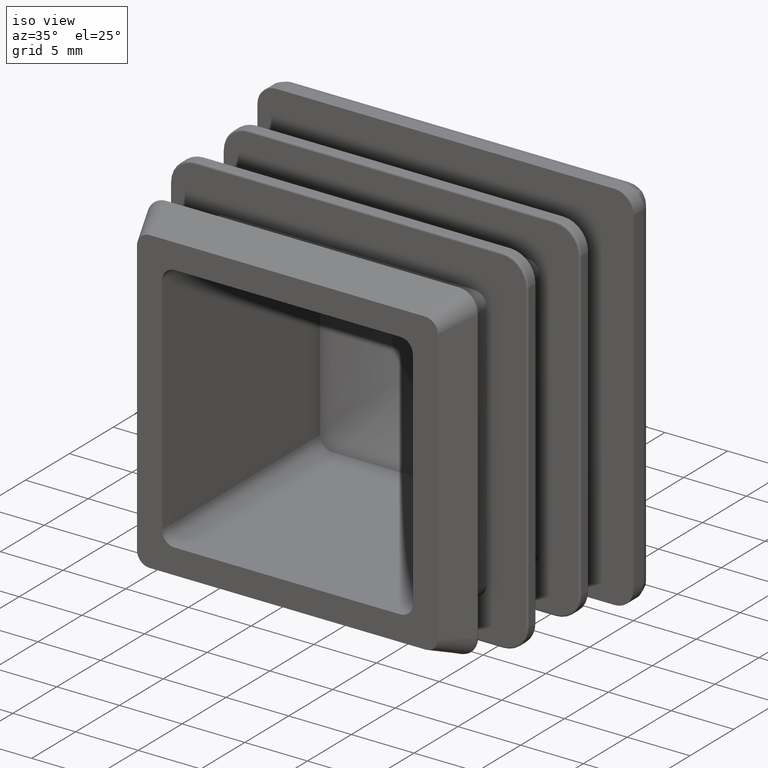
[diagram: clean part render]
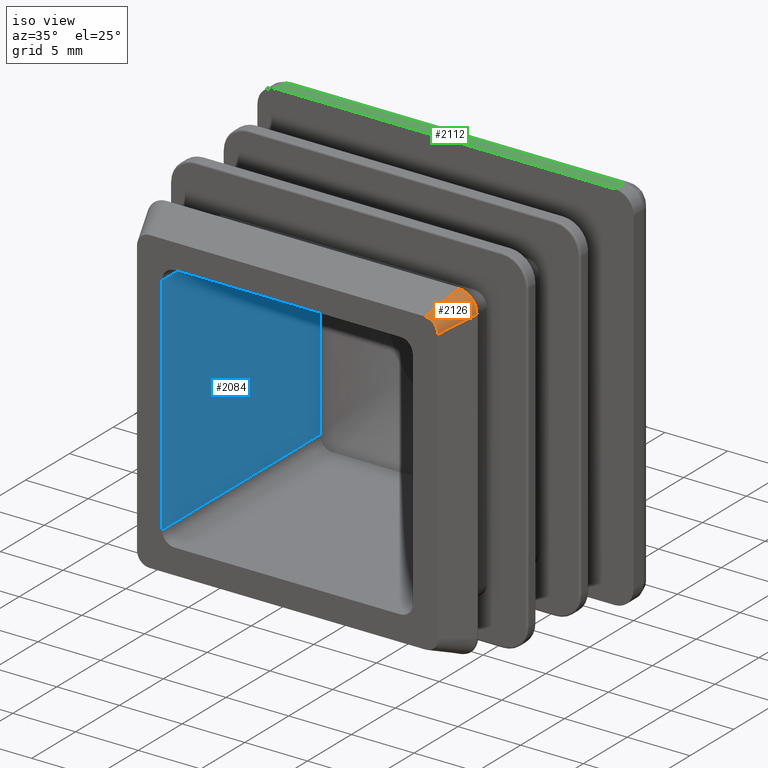
[diagram: same view with three faces highlighted in distinct colors, each labeled with its STEP entity id]
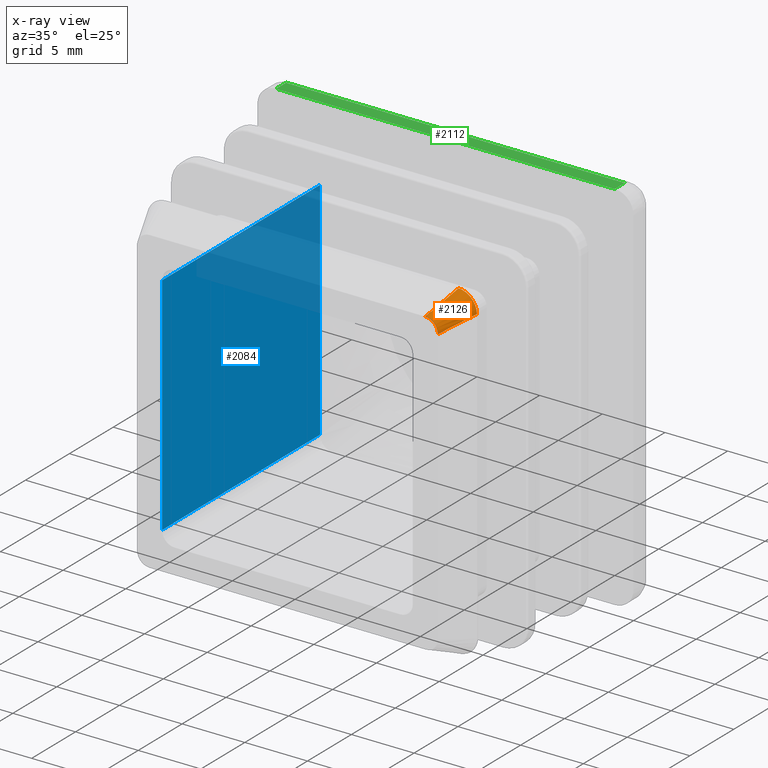
[diagram: x-ray of the same camera — body ghosted, the three highlighted faces saturated]
A machine part, iso view with three faces highlighted in distinct colors.
The next image is the same camera in x-ray (body ghosted, the three faces saturated) — at least one of them is partly hidden behind the body in this view.
Their STEP definitions:

[orange] entity #2126 — the highlighted face is a freeform B-spline surface patch.
#32=(
BOUNDED_SURFACE()
B_SPLINE_SURFACE(1,2,((#4036,#4037,#4038),(#4039,#4040,#4041)),
 .UNSPECIFIED.,.F.,.F.,.F.)
B_SPLINE_SURFACE_WITH_KNOTS((2,2),(3,3),(-0.165194065145161,1.9891013757622),
(-2.3205807165196,-0.821011937070298),.UNSPECIFIED.)
GEOMETRIC_REPRESENTATION_ITEM()
RATIONAL_B_SPLINE_SURFACE(((1.,0.73183582018612,1.),(1.,0.73183582018612,
1.)))
REPRESENTATION_ITEM('')
SURFACE()
);
#46=B_SPLINE_CURVE_WITH_KNOTS('',3,(#3840,#3841,#3842,#3843,#3844),
 .UNSPECIFIED.,.F.,.F.,(4,1,4),(-0.208371913832092,-0.0893022487851824,
0.),.UNSPECIFIED.);
#186=LINE('',#4034,#350);
#188=LINE('',#4043,#352);
#350=VECTOR('',#2710,3.10450259953709);
#352=VECTOR('',#2712,3.10450259953709);
#522=FACE_OUTER_BOUND('',#659,.T.);
#659=EDGE_LOOP('',(#1622,#1623,#1624,#1625));
#790=CIRCLE('',#2300,0.999999999999999);
#943=VERTEX_POINT('',#3837);
#944=VERTEX_POINT('',#3839);
#961=VERTEX_POINT('',#4033);
#962=VERTEX_POINT('',#4042);
#1175=EDGE_CURVE('',#943,#944,#46,.T.);
#1203=EDGE_CURVE('',#944,#961,#186,.T.);
#1205=EDGE_CURVE('',#943,#962,#188,.T.);
#1206=EDGE_CURVE('',#962,#961,#790,.T.);
#1622=ORIENTED_EDGE('',*,*,#1175,.F.);
#1623=ORIENTED_EDGE('',*,*,#1205,.T.);
#1624=ORIENTED_EDGE('',*,*,#1206,.T.);
#1625=ORIENTED_EDGE('',*,*,#1203,.F.);
#2126=ADVANCED_FACE('',(#522),#32,.F.);
#2300=AXIS2_PLACEMENT_3D('',#4044,#2713,#2714);
#2710=DIRECTION('',(-0.374765844497932,-0.899438026795033,-0.224859506698761));
#2712=DIRECTION('',(-0.224859506698759,-0.899438026795033,-0.374765844497933));
#2713=DIRECTION('center_axis',(0.,1.,0.));
#2714=DIRECTION('ref_axis',(1.,0.,-2.22044604925032E-15));
#3837=CARTESIAN_POINT('',(11.6980769230769,-15.2076923076923,13.1634615384615));
#3839=CARTESIAN_POINT('',(13.1634615384615,-15.2076923076923,11.6980769230769));
#3840=CARTESIAN_POINT('Ctrl Pts',(11.6980769230769,-15.2076923076923,13.1634615384615));
#3841=CARTESIAN_POINT('Ctrl Pts',(12.1366227737999,-15.2165638510083,13.1597650620799));
#3842=CARTESIAN_POINT('Ctrl Pts',(12.8878138604166,-15.2229916394853,12.7888403204552));
#3843=CARTESIAN_POINT('Ctrl Pts',(13.1606891811753,-15.2143459651793,12.0269863111191));
#3844=CARTESIAN_POINT('Ctrl Pts',(13.1634615384615,-15.2076923076923,11.6980769230769));
#4033=CARTESIAN_POINT('',(12.,-18.,11.));
#4034=CARTESIAN_POINT('',(13.25,-15.,11.75));
#4036=CARTESIAN_POINT('Ctrl Pts',(13.2117748773477,-15.0917402943656,11.7270649264086));
#4037=CARTESIAN_POINT('Ctrl Pts',(13.0863524490272,-15.3927541223345,13.0863524490274));
#4038=CARTESIAN_POINT('Ctrl Pts',(11.7270649264086,-15.0917402943656,13.2117748773477));
#4039=CARTESIAN_POINT('Ctrl Pts',(12.,-18.,11.));
#4040=CARTESIAN_POINT('Ctrl Pts',(11.9155239525127,-18.2027425139695,11.9155239525128));
#4041=CARTESIAN_POINT('Ctrl Pts',(11.,-18.,12.));
#4042=CARTESIAN_POINT('',(11.,-18.,12.));
#4043=CARTESIAN_POINT('',(11.75,-15.,13.25));
#4044=CARTESIAN_POINT('Origin',(11.,-18.,11.));

[blue] entity #2084 — the highlighted planar face has unit normal (-1, 0, 0).
#126=LINE('',#3281,#290);
#134=LINE('',#3448,#298);
#136=LINE('',#3452,#300);
#137=LINE('',#3453,#301);
#290=VECTOR('',#2494,18.);
#298=VECTOR('',#2512,18.);
#300=VECTOR('',#2516,18.);
#301=VECTOR('',#2517,18.);
#480=FACE_OUTER_BOUND('',#616,.T.);
#616=EDGE_LOOP('',(#1434,#1435,#1436,#1437));
#887=VERTEX_POINT('',#3233);
#888=VERTEX_POINT('',#3280);
#893=VERTEX_POINT('',#3445);
#895=VERTEX_POINT('',#3451);
#1083=EDGE_CURVE('',#888,#887,#126,.T.);
#1095=EDGE_CURVE('',#893,#887,#134,.T.);
#1097=EDGE_CURVE('',#895,#893,#136,.T.);
#1098=EDGE_CURVE('',#895,#888,#137,.T.);
#1434=ORIENTED_EDGE('',*,*,#1097,.F.);
#1435=ORIENTED_EDGE('',*,*,#1098,.T.);
#1436=ORIENTED_EDGE('',*,*,#1083,.T.);
#1437=ORIENTED_EDGE('',*,*,#1095,.F.);
#2031=PLANE('',#2227);
#2084=ADVANCED_FACE('',(#480),#2031,.F.);
#2227=AXIS2_PLACEMENT_3D('',#3450,#2514,#2515);
#2494=DIRECTION('',(0.,0.,1.));
#2512=DIRECTION('',(0.,1.,0.));
#2514=DIRECTION('center_axis',(-1.,0.,0.));
#2515=DIRECTION('ref_axis',(0.,0.,1.));
#2516=DIRECTION('',(0.,0.,1.));
#2517=DIRECTION('',(0.,1.,0.));
#3233=CARTESIAN_POINT('',(-9.99999999999999,0.,9.));
#3280=CARTESIAN_POINT('',(-9.99999999999999,0.,-9.));
#3281=CARTESIAN_POINT('',(-10.,0.,9.));
#3445=CARTESIAN_POINT('',(-10.,-18.,9.));
#3448=CARTESIAN_POINT('',(-10.,-18.,9.));
#3450=CARTESIAN_POINT('Origin',(-10.,-18.,-9.));
#3451=CARTESIAN_POINT('',(-10.,-18.,-9.));
#3452=CARTESIAN_POINT('',(-10.,-18.,-4.5));
#3453=CARTESIAN_POINT('',(-10.,-18.,-9.));

[green] entity #2112 — the highlighted planar face has unit normal (0, 0, 1).
#148=LINE('',#3664,#312);
#163=LINE('',#3766,#327);
#167=LINE('',#3779,#331);
#168=LINE('',#3781,#332);
#312=VECTOR('',#2582,27.);
#327=VECTOR('',#2631,1.12448360330523);
#331=VECTOR('',#2647,1.12448360330523);
#332=VECTOR('',#2650,27.);
#508=FACE_OUTER_BOUND('',#644,.T.);
#644=EDGE_LOOP('',(#1553,#1554,#1555,#1556));
#917=VERTEX_POINT('',#3644);
#920=VERTEX_POINT('',#3662);
#930=VERTEX_POINT('',#3765);
#933=VERTEX_POINT('',#3777);
#1132=EDGE_CURVE('',#920,#917,#148,.T.);
#1156=EDGE_CURVE('',#917,#930,#163,.T.);
#1163=EDGE_CURVE('',#933,#920,#167,.T.);
#1164=EDGE_CURVE('',#933,#930,#168,.T.);
#1553=ORIENTED_EDGE('',*,*,#1132,.F.);
#1554=ORIENTED_EDGE('',*,*,#1163,.F.);
#1555=ORIENTED_EDGE('',*,*,#1164,.T.);
#1556=ORIENTED_EDGE('',*,*,#1156,.F.);
#2040=PLANE('',#2278);
#2112=ADVANCED_FACE('',(#508),#2040,.T.);
#2278=AXIS2_PLACEMENT_3D('',#3780,#2648,#2649);
#2582=DIRECTION('',(1.,4.20018074499028E-17,0.));
#2631=DIRECTION('',(0.,-1.,0.));
#2647=DIRECTION('',(0.,1.,0.));
#2648=DIRECTION('center_axis',(0.,0.,1.));
#2649=DIRECTION('ref_axis',(1.,0.,0.));
#2650=DIRECTION('',(1.,0.,0.));
#3644=CARTESIAN_POINT('',(13.5,1.12448360330523,15.));
#3662=CARTESIAN_POINT('',(-13.5,1.12448360330523,15.));
#3664=CARTESIAN_POINT('',(-7.5,1.12448360330523,15.));
#3765=CARTESIAN_POINT('',(13.5,0.,15.));
#3766=CARTESIAN_POINT('',(13.5,0.,15.));
#3777=CARTESIAN_POINT('',(-13.5,0.,15.));
#3779=CARTESIAN_POINT('',(-13.5,0.,15.));
#3780=CARTESIAN_POINT('Origin',(-15.,0.,15.));
#3781=CARTESIAN_POINT('',(-15.,0.,15.));